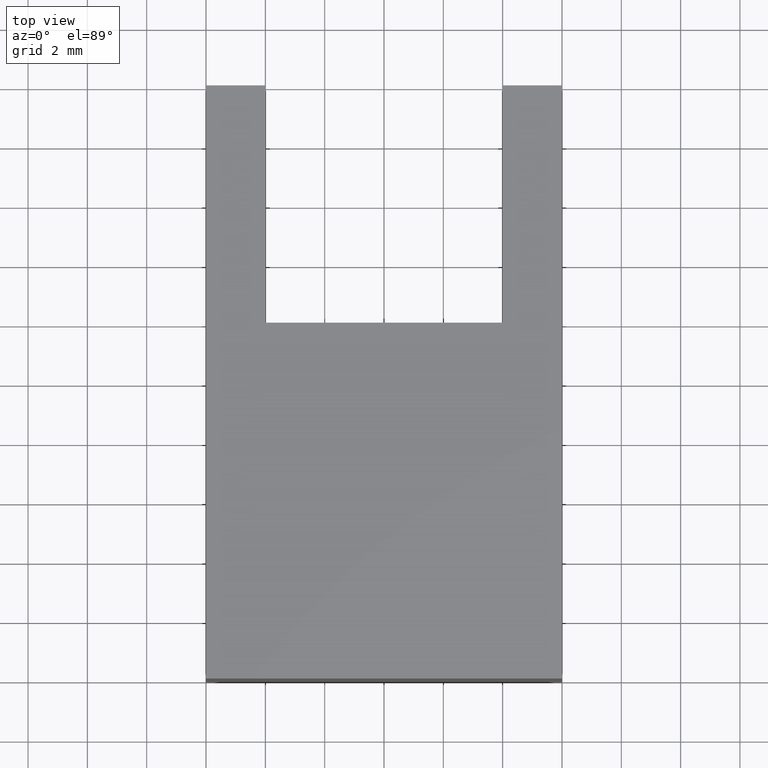
[diagram: clean part render]
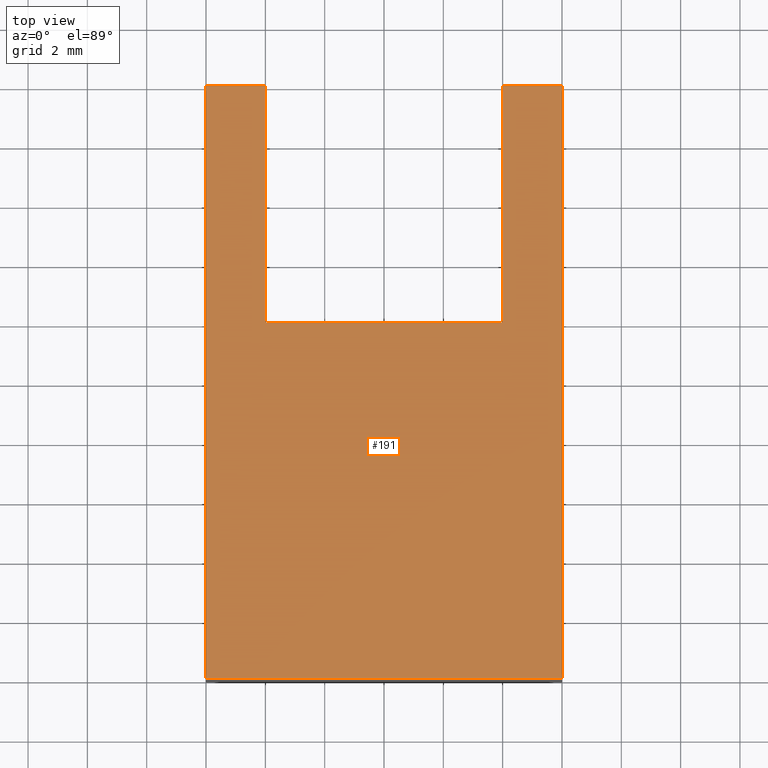
[diagram: same view with one face highlighted and labeled with its STEP entity id]
A machine part, top view. The second image highlights one B-rep face of the part: STEP entity #191.
In plain terms, the highlighted planar face has unit normal (0, 0, 1).
Its self-contained STEP definition (entity closure, byte-faithful):
#25=FACE_OUTER_BOUND('',#35,.T.);
#35=EDGE_LOOP('',(#164,#165,#166,#167,#168,#169,#170,#171));
#44=LINE('',#292,#68);
#47=LINE('',#297,#71);
#49=LINE('',#301,#73);
#51=LINE('',#305,#75);
#53=LINE('',#309,#77);
#55=LINE('',#313,#79);
#57=LINE('',#317,#81);
#59=LINE('',#320,#83);
#68=VECTOR('',#239,10.);
#71=VECTOR('',#244,10.);
#73=VECTOR('',#248,10.);
#75=VECTOR('',#252,10.);
#77=VECTOR('',#256,10.);
#79=VECTOR('',#260,10.);
#81=VECTOR('',#264,10.);
#83=VECTOR('',#268,10.);
#92=VERTEX_POINT('',#290);
#93=VERTEX_POINT('',#291);
#94=VERTEX_POINT('',#296);
#95=VERTEX_POINT('',#300);
#96=VERTEX_POINT('',#304);
#97=VERTEX_POINT('',#308);
#98=VERTEX_POINT('',#312);
#99=VERTEX_POINT('',#316);
#108=EDGE_CURVE('',#92,#93,#44,.T.);
#111=EDGE_CURVE('',#93,#94,#47,.T.);
#113=EDGE_CURVE('',#94,#95,#49,.T.);
#115=EDGE_CURVE('',#95,#96,#51,.T.);
#117=EDGE_CURVE('',#96,#97,#53,.T.);
#119=EDGE_CURVE('',#97,#98,#55,.T.);
#121=EDGE_CURVE('',#98,#99,#57,.T.);
#123=EDGE_CURVE('',#99,#92,#59,.T.);
#164=ORIENTED_EDGE('',*,*,#108,.F.);
#165=ORIENTED_EDGE('',*,*,#123,.F.);
#166=ORIENTED_EDGE('',*,*,#121,.F.);
#167=ORIENTED_EDGE('',*,*,#119,.F.);
#168=ORIENTED_EDGE('',*,*,#117,.F.);
#169=ORIENTED_EDGE('',*,*,#115,.F.);
#170=ORIENTED_EDGE('',*,*,#113,.F.);
#171=ORIENTED_EDGE('',*,*,#111,.F.);
#181=PLANE('',#224);
#191=ADVANCED_FACE('',(#25),#181,.T.);
#224=AXIS2_PLACEMENT_3D('',#321,#269,#270);
#239=DIRECTION('',(0.,1.,0.));
#244=DIRECTION('',(1.,1.11022302462515E-15,0.));
#248=DIRECTION('',(0.,-1.,0.));
#252=DIRECTION('',(1.,0.,0.));
#256=DIRECTION('',(0.,1.,0.));
#260=DIRECTION('',(1.,-1.11022302462516E-15,0.));
#264=DIRECTION('',(0.,-1.,0.));
#268=DIRECTION('',(-1.,0.,0.));
#269=DIRECTION('center_axis',(0.,0.,1.));
#270=DIRECTION('ref_axis',(1.,0.,0.));
#290=CARTESIAN_POINT('',(-6.,-10.,4.));
#291=CARTESIAN_POINT('',(-6.,10.,4.));
#292=CARTESIAN_POINT('',(-6.,-10.,4.));
#296=CARTESIAN_POINT('',(-4.,10.,4.));
#297=CARTESIAN_POINT('',(-6.,10.,4.));
#300=CARTESIAN_POINT('',(-4.,2.,4.));
#301=CARTESIAN_POINT('',(-4.,10.,4.));
#304=CARTESIAN_POINT('',(4.,2.,4.));
#305=CARTESIAN_POINT('',(-4.,2.,4.));
#308=CARTESIAN_POINT('',(4.,10.,4.));
#309=CARTESIAN_POINT('',(4.,2.,4.));
#312=CARTESIAN_POINT('',(6.,10.,4.));
#313=CARTESIAN_POINT('',(4.,10.,4.));
#316=CARTESIAN_POINT('',(6.,-10.,4.));
#317=CARTESIAN_POINT('',(6.,10.,4.));
#320=CARTESIAN_POINT('',(6.,-10.,4.));
#321=CARTESIAN_POINT('Origin',(-1.38777878078145E-15,0.400000000000001,
4.));